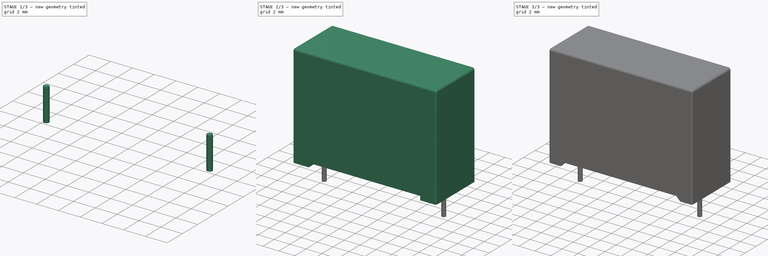
[diagram: build sequence overview — one tinted view per stage of 3, left to right]
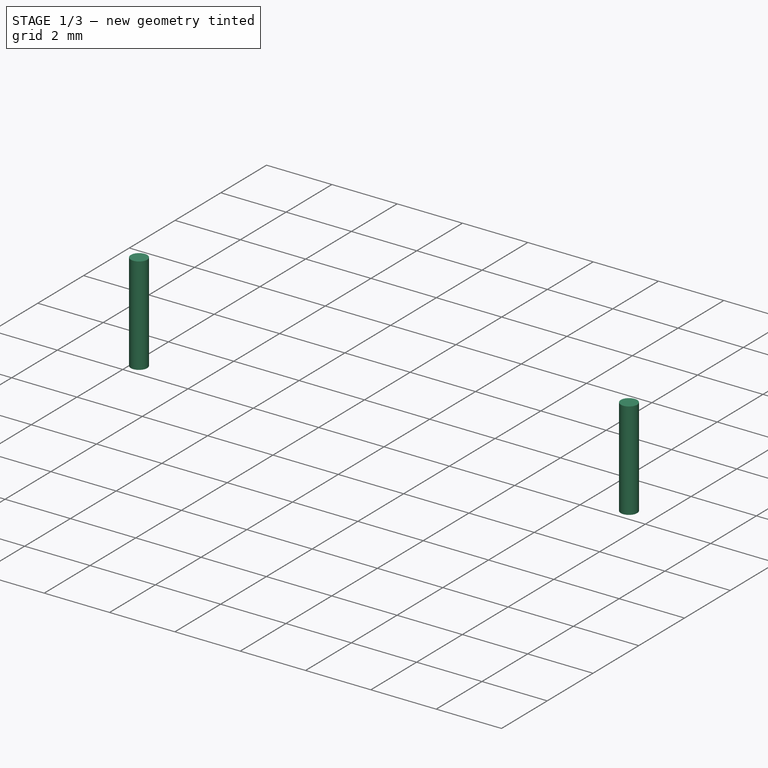
[diagram: stage 1 of 3 — iso view after this stage's code; geometry added in this stage tinted green]
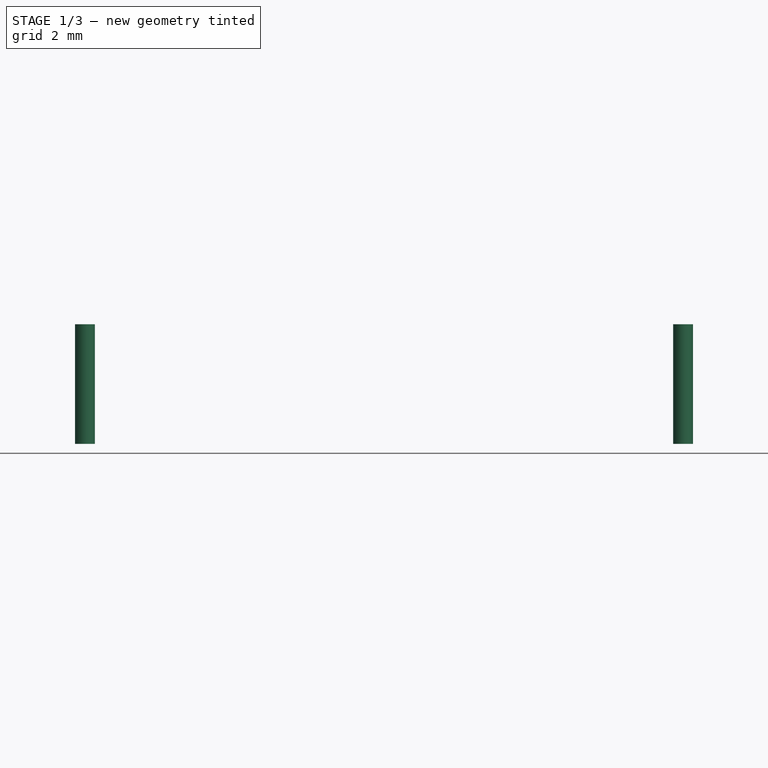
[diagram: stage 1 of 3 — front view after this stage's code; geometry added in this stage tinted green]
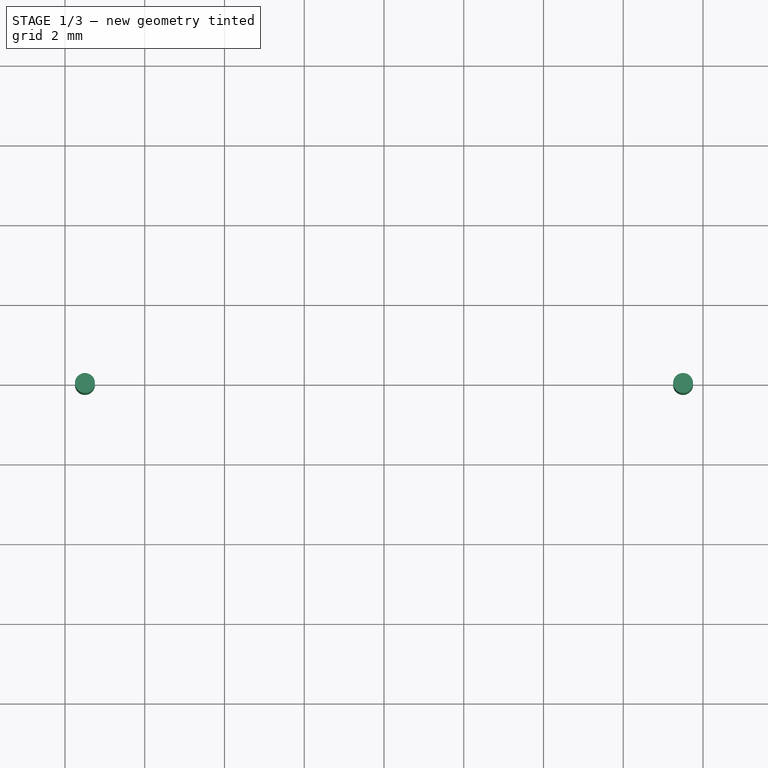
[diagram: stage 1 of 3 — top view after this stage's code; geometry added in this stage tinted green]
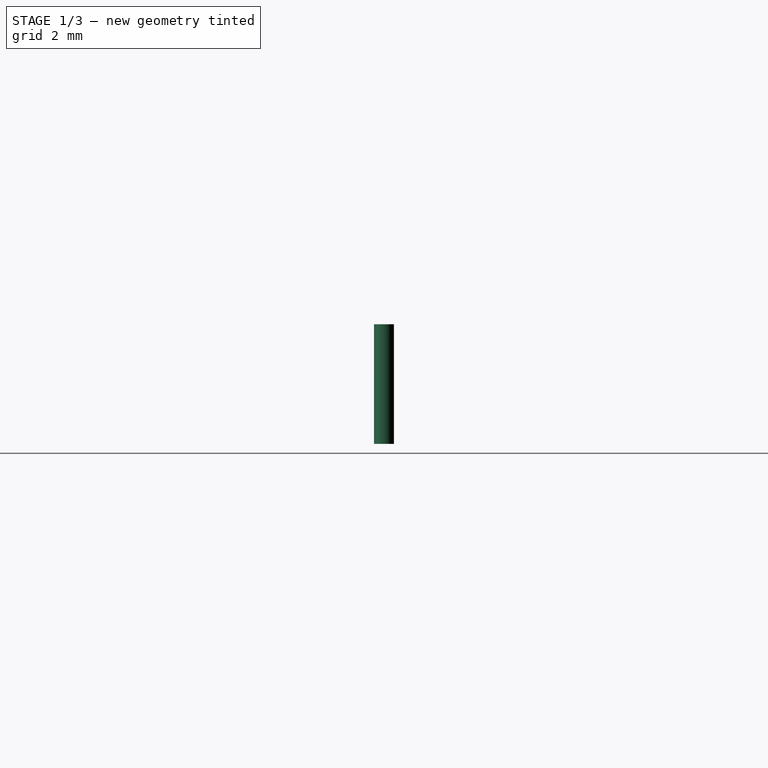
[diagram: stage 1 of 3 — right view after this stage's code; geometry added in this stage tinted green]
FCSTD DOCUMENT  (FreeCAD 0.18R4 (GitTag))
Label: capacitor1
License: All rights reserved
LicenseURL: http://en.wikipedia.org/wiki/All_rights_reserved
objects: Sketcher::SketchObject×4, PartDesign::Pad×3, PartDesign::Body×3, PartDesign::Fillet×2, PartDesign::Chamfer×1, Spreadsheet::Sheet×1, PartDesign::Pocket×1, App::Part×1
note: 18 computed .brp shape members not serialized (recipe doc carries the construction recipe); baked Part::Feature solids carry a one-line shape summary decoded from their .brp

FEATURE [PartDesign::Body] Body
  Group = -> [Sketch,Pad,Fillet,Fillet001,Chamfer,Sketch001,Pocket]
  Origin = -> Origin001
  Tip = -> Pocket
FEATURE [Sketcher::SketchObject] Sketch003
  MapMode = 5
  Placement = pos=(0,0,0) rot=(0,1,0;3.14159rad)
  Support = -> [XY_Plane002]
  expr: Constraints[2] = Spreadsheet.B5
  expr: Constraints[1] = Spreadsheet.D4
  sketch-geometry (1):
    g0: Circle CenterX=-7.5 CenterY=0 CenterZ=0 NormalX=0 NormalY=0 NormalZ=1 AngleXU=0 Radius=0.25
  constraints (3):
    c: PointOnObject(g0,g-1)
    c: DistanceX(g0,g-1) = 7.5
    c: Diameter(g0) = 0.5
FEATURE [PartDesign::Pad] Pad001
  Length = 3
  Length2 = 100
  Profile = -> Sketch003
  Type = 0
FEATURE [PartDesign::Body] Body001
  Group = -> [Sketch003,Pad001]
  Origin = -> Origin002
  Placement = pos=(0,0,1) rot=(0,0,1;0rad)
  Tip = -> Pad001
FEATURE [Sketcher::SketchObject] Sketch004
  MapMode = 5
  Placement = pos=(0,0,0) rot=(0,1,0;3.14159rad)
  Support = -> [XY_Plane003]
  expr: Constraints[2] = Spreadsheet.D4
  expr: Constraints[1] = Spreadsheet.B5
  sketch-geometry (1):
    g0: Circle CenterX=7.5 CenterY=0 CenterZ=0 NormalX=0 NormalY=0 NormalZ=1 AngleXU=0 Radius=0.25
  constraints (3):
    c: PointOnObject(g0,g-1)
    c: Diameter(g0) = 0.5
    c: DistanceX(g-1,g0) = 7.5
FEATURE [PartDesign::Pad] Pad002
  Length = 3
  Length2 = 100
  Profile = -> Sketch004
  Type = 0
FEATURE [PartDesign::Body] Body002
  Group = -> [Sketch004,Pad002]
  Origin = -> Origin003
  Placement = pos=(0,0,1) rot=(0,0,1;0rad)
  Tip = -> Pad002
FEATURE [App::Part] Part
  Group = -> [Body,Spreadsheet,Body001,Body002]
  Origin = -> Origin
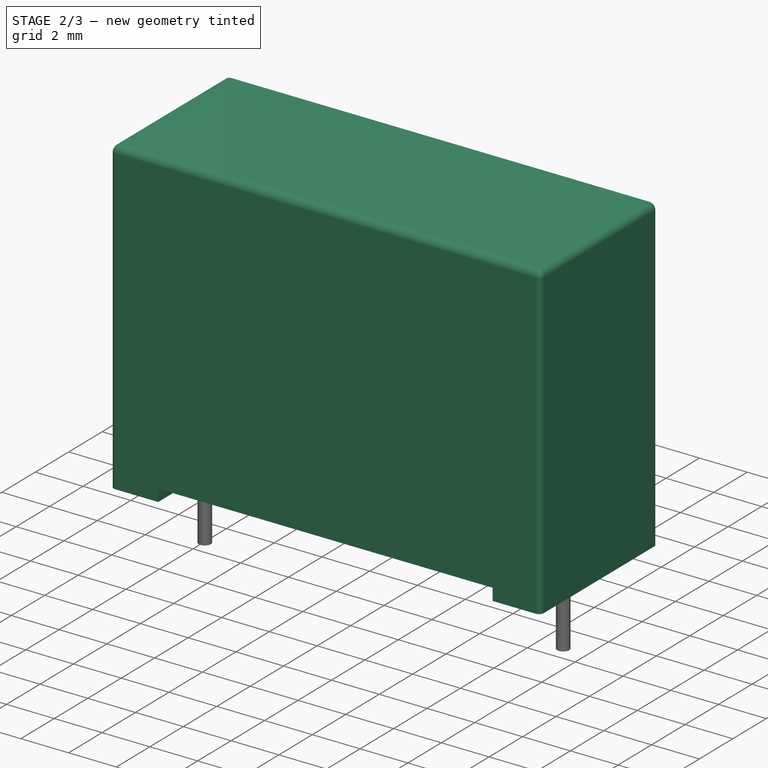
[diagram: stage 2 of 3 — iso view after this stage's code; geometry added in this stage tinted green]
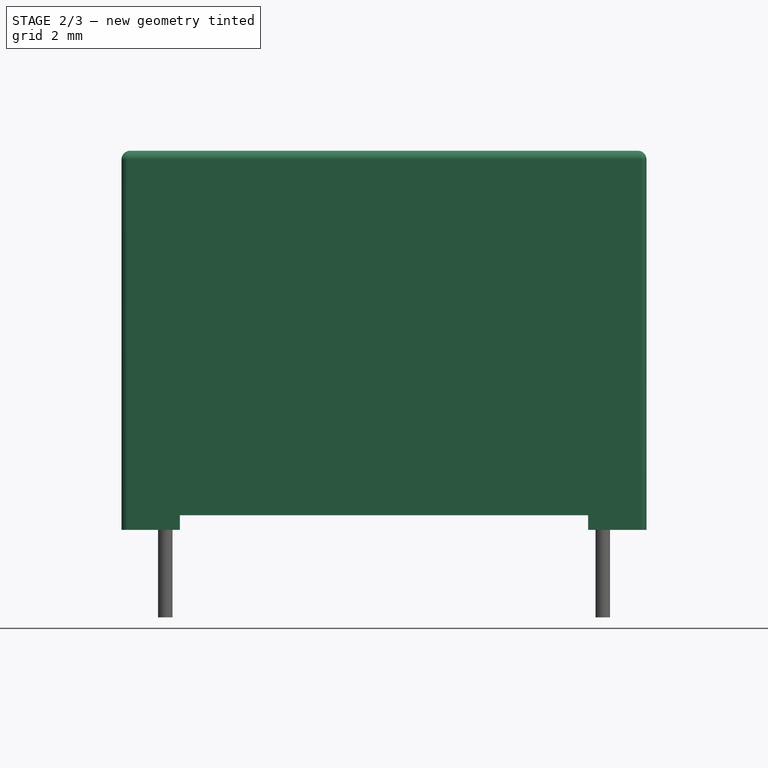
[diagram: stage 2 of 3 — front view after this stage's code; geometry added in this stage tinted green]
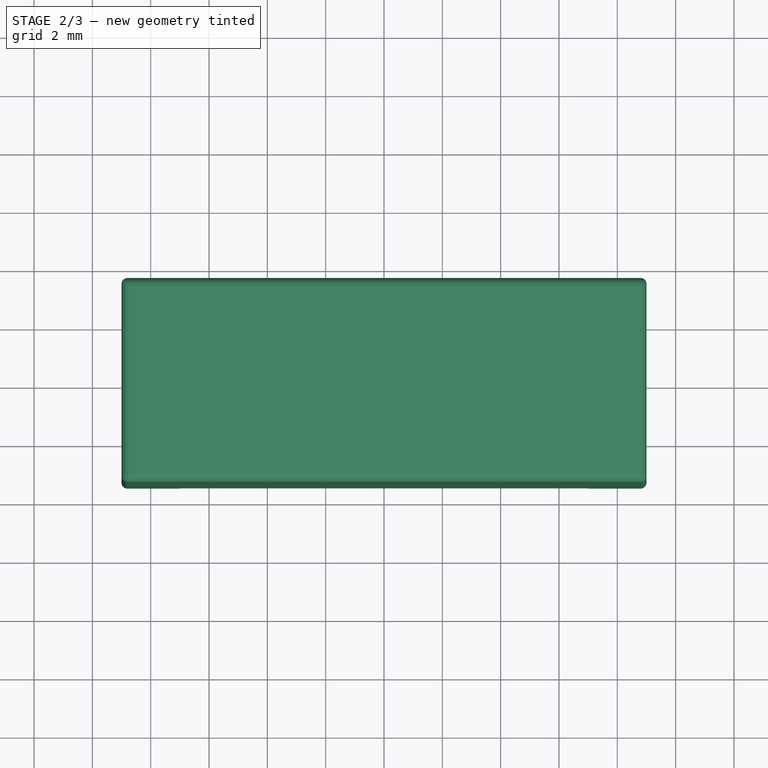
[diagram: stage 2 of 3 — top view after this stage's code; geometry added in this stage tinted green]
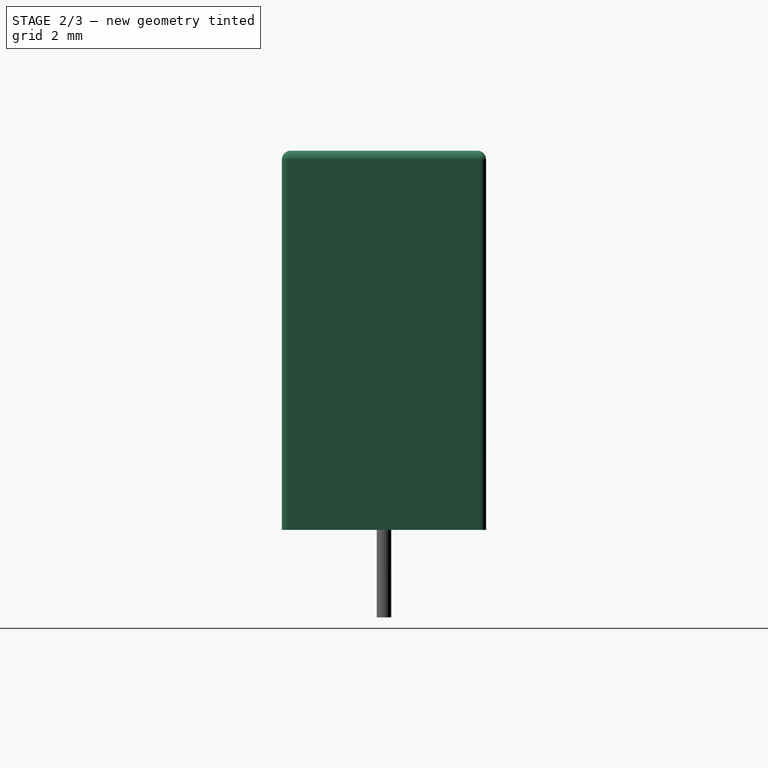
[diagram: stage 2 of 3 — right view after this stage's code; geometry added in this stage tinted green]
FEATURE [Sketcher::SketchObject] Sketch
  MapMode = 5
  Placement = pos=(0,0,0) rot=(1,0,0;1.5708rad)
  Support = -> [XZ_Plane001]
  expr: Constraints[18] = Spreadsheet.B1
  expr: Constraints[19] = Spreadsheet.B2
  sketch-geometry (8):
    g0: LineSegment StartX=-9 StartY=0 StartZ=0 EndX=-7 EndY=0 EndZ=0
    g1: LineSegment StartX=-7 StartY=0 StartZ=0 EndX=-7 EndY=0.5 EndZ=0
    g2: LineSegment StartX=-7 StartY=0.5 StartZ=0 EndX=7 EndY=0.5 EndZ=0
    g3: LineSegment StartX=7 StartY=0.5 StartZ=0 EndX=7 EndY=0 EndZ=0
    g4: LineSegment StartX=7 StartY=0 StartZ=0 EndX=9 EndY=0 EndZ=0
    g5: LineSegment StartX=9 StartY=0 StartZ=0 EndX=9 EndY=13 EndZ=0
    g6: LineSegment StartX=9 StartY=13 StartZ=0 EndX=-9 EndY=13 EndZ=0
    g7: LineSegment StartX=-9 StartY=13 StartZ=0 EndX=-9 EndY=0 EndZ=0
  constraints (22):
    c: PointOnObject(g0,g-1)
    c: Horizontal(g0)
    c: Coincident(g0,g1)
    c: Vertical(g1)
    c: Coincident(g1,g2)
    c: Coincident(g2,g3)
    c: Coincident(g3,g4)
    c: Coincident(g4,g5)
    c: Vertical(g5)
    c: Coincident(g5,g6)
    c: Coincident(g6,g7)
    c: Coincident(g7,g0)
    c: Vertical(g7)
    c: Horizontal(g4)
    c: Equal(g3,g1)
    c: Equal(g0,g4)
    c: Symmetric(g2,g1,g-2)
    c: Symmetric(g6,g5,g-2)
    c: DistanceX(g6,g6) = 18
    c: DistanceY(g7,g7) = 13
    c: DistanceX(g0,g0) = 2
    c: DistanceY(g3,g3) = 0.5
FEATURE [PartDesign::Pad] Pad
  Length = 7
  Length2 = 100
  Midplane = true
  Placement = pos=(0,0,0) rot=(1,0,0;1.5708rad)
  Profile = -> Sketch
  Type = 0
  expr: Length = Spreadsheet.B3
FEATURE [PartDesign::Fillet] Fillet
  Base = -> Pad [Edge24,Edge19,Edge18,Edge23]
  BaseFeature = -> Pad
  Placement = pos=(0,0,0) rot=(1,0,0;1.5708rad)
  Radius = 0.2
FEATURE [PartDesign::Fillet] Fillet001
  Base = -> Fillet [Face8]
  BaseFeature = -> Fillet
  Placement = pos=(0,0,0) rot=(1,0,0;1.5708rad)
  Radius = 0.3
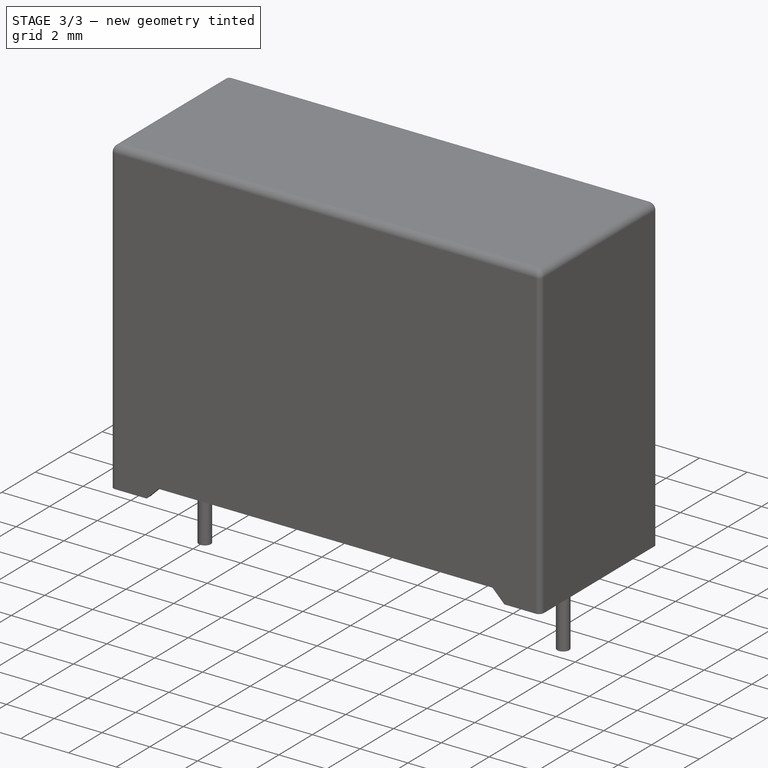
[diagram: stage 3 of 3 — iso view after this stage's code; geometry added in this stage tinted green]
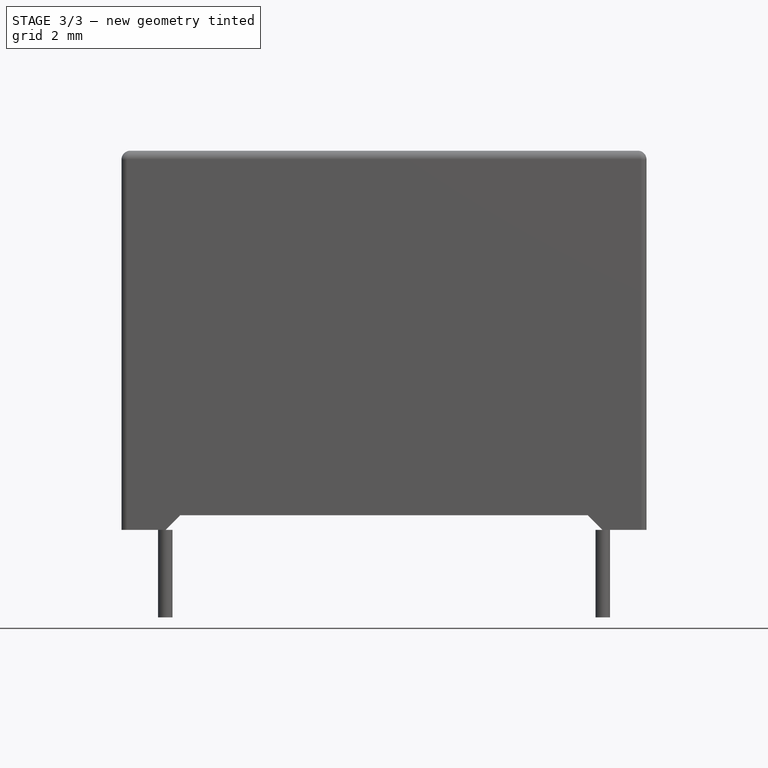
[diagram: stage 3 of 3 — front view after this stage's code; geometry added in this stage tinted green]
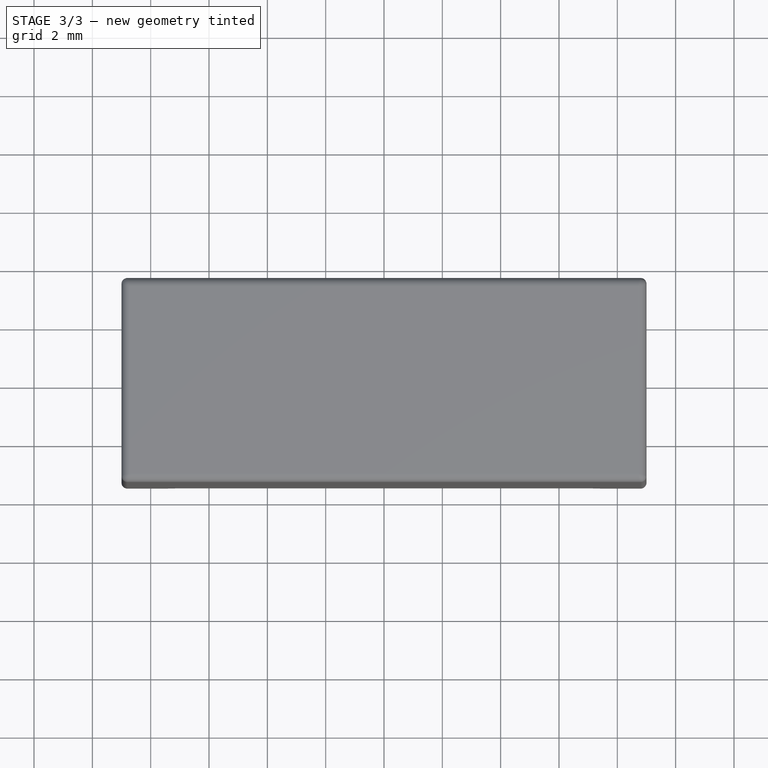
[diagram: stage 3 of 3 — top view after this stage's code; geometry added in this stage tinted green]
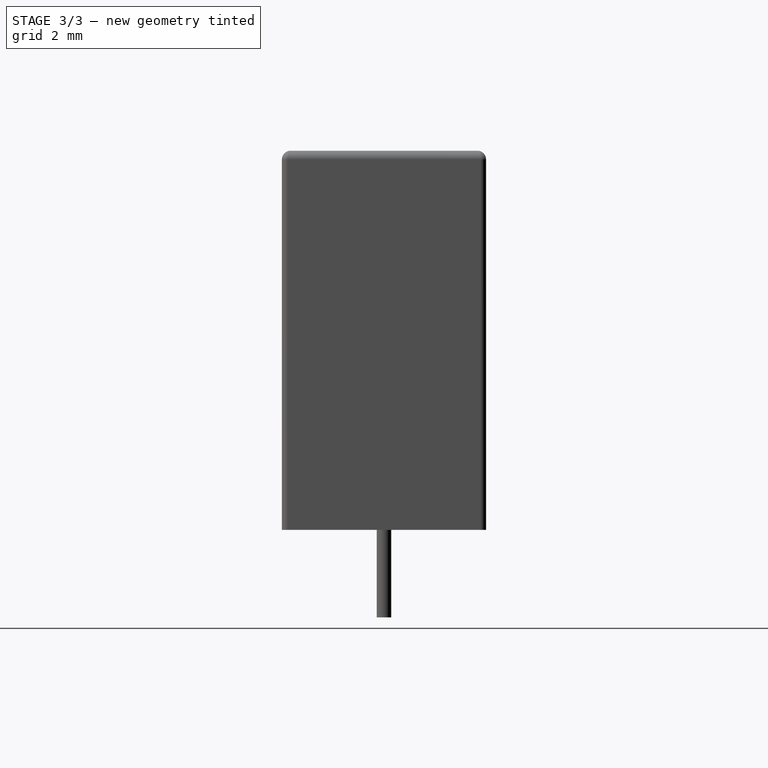
[diagram: stage 3 of 3 — right view after this stage's code; geometry added in this stage tinted green]
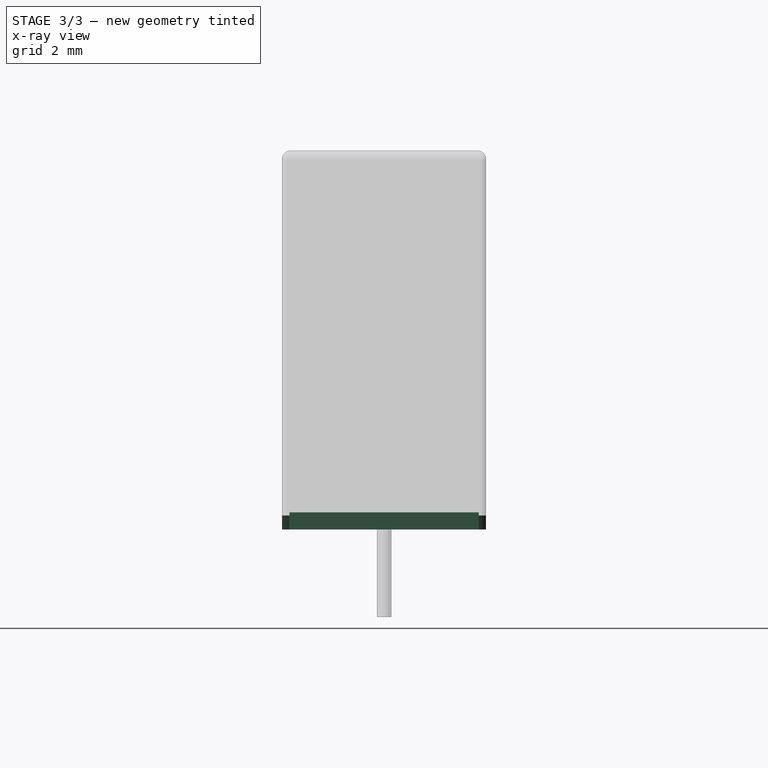
[diagram: stage 3 of 3 — x-ray composite at the right view; earlier geometry ghosted, this stage's added geometry solid]
FEATURE [PartDesign::Chamfer] Chamfer
  Base = -> Fillet001 [Edge43,Edge14]
  BaseFeature = -> Fillet001
  Placement = pos=(0,0,0) rot=(1,0,0;1.5708rad)
  Size = 0.49
FEATURE [Spreadsheet::Sheet] Spreadsheet
  cells = A1=w; B1=18; D1==B1 - 0.5; A2=h; B2=13; A3=d; B3=7; D3==B3 - 0.5; A4=r; B4=15; D4==B4 / 2; A5=d1; B5=0.5
FEATURE [Sketcher::SketchObject] Sketch001
  MapMode = 5
  Placement = pos=(0,0,0) rot=(1,0,0;3.14159rad)
  Support = -> [Chamfer]
  expr: Constraints[8] = Spreadsheet.D1
  expr: Constraints[9] = Spreadsheet.D3
  sketch-geometry (4):
    g0: LineSegment StartX=-8.75 StartY=3.25 StartZ=0 EndX=8.75 EndY=3.25 EndZ=0
    g1: LineSegment StartX=8.75 StartY=3.25 StartZ=0 EndX=8.75 EndY=-3.25 EndZ=0
    g2: LineSegment StartX=8.75 StartY=-3.25 StartZ=0 EndX=-8.75 EndY=-3.25 EndZ=0
    g3: LineSegment StartX=-8.75 StartY=-3.25 StartZ=0 EndX=-8.75 EndY=3.25 EndZ=0
  constraints (10):
    c: Coincident(g0,g1)
    c: Coincident(g1,g2)
    c: Coincident(g2,g3)
    c: Coincident(g3,g0)
    c: Horizontal(g2)
    c: Vertical(g3)
    c: Symmetric(g1,g0,g-1)
    c: Symmetric(g0,g0,g-2)
    c: DistanceX(g0,g0) = 17.5
    c: DistanceY(g1,g1) = 6.5
FEATURE [PartDesign::Pocket] Pocket
  BaseFeature = -> Chamfer
  Length = 0.6
  Length2 = 100
  Placement = pos=(0,0,0) rot=(1,0,0;1.5708rad)
  Profile = -> Sketch001
  Type = 0
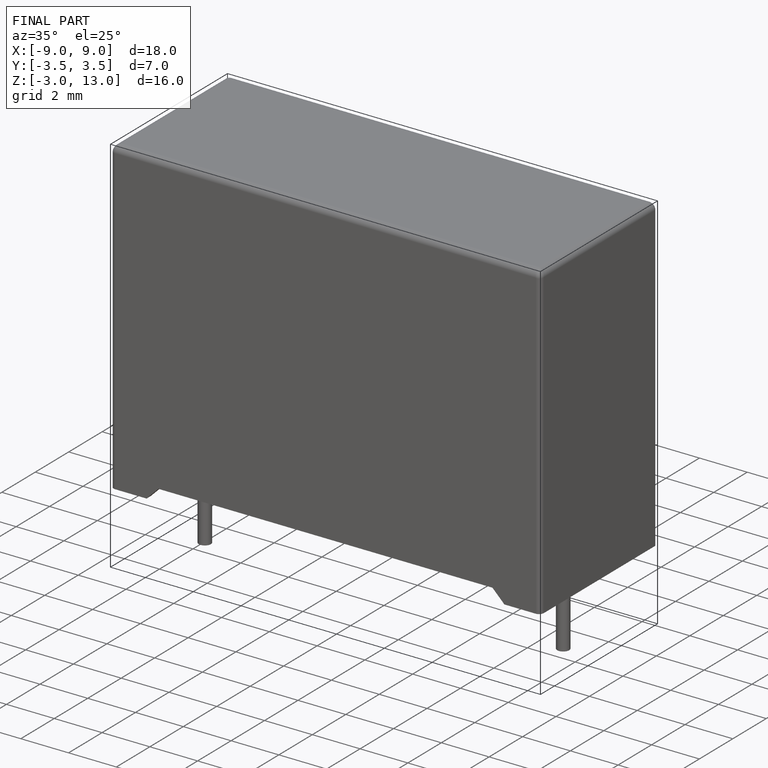
[diagram: finished part — iso view with bounding-box wireframe]
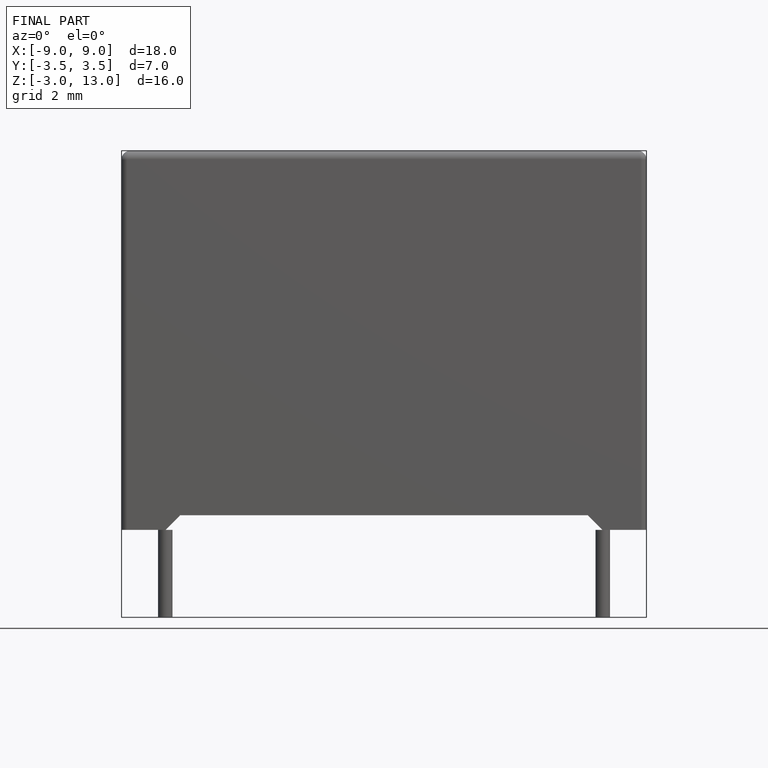
[diagram: finished part — front view with bounding-box wireframe]
